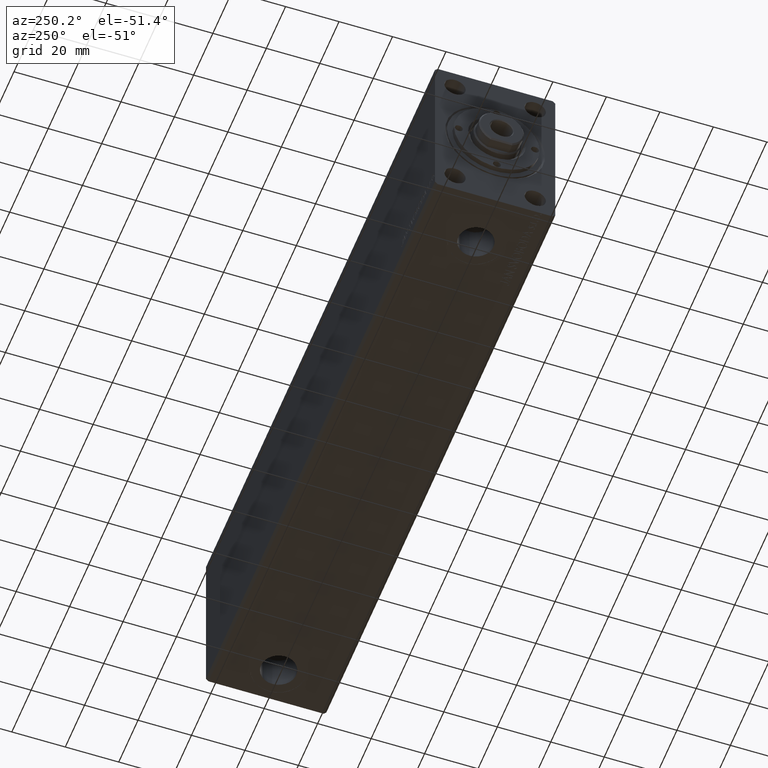
[diagram: clean part render]
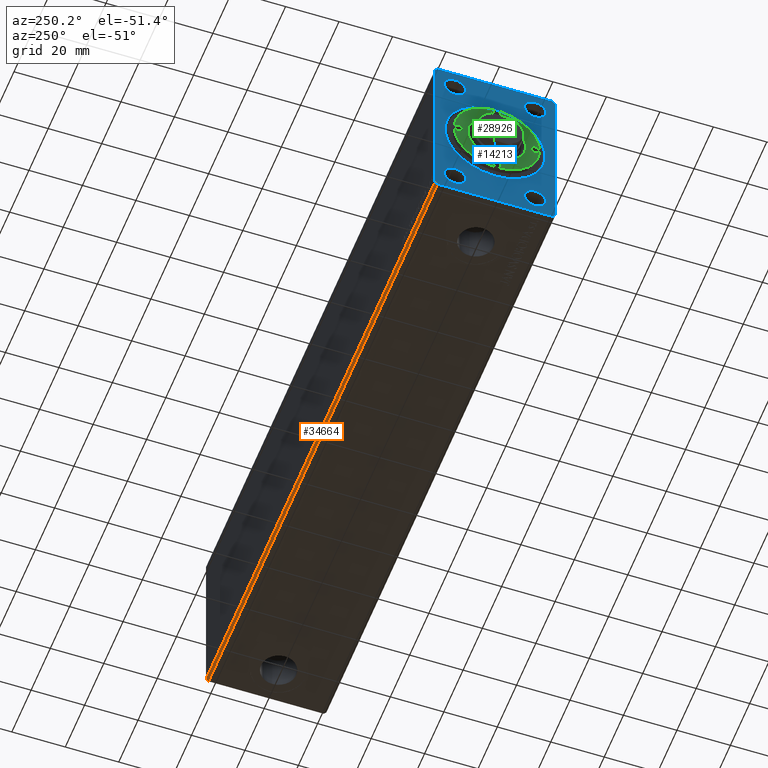
[diagram: same view with three faces highlighted in distinct colors, each labeled with its STEP entity id]
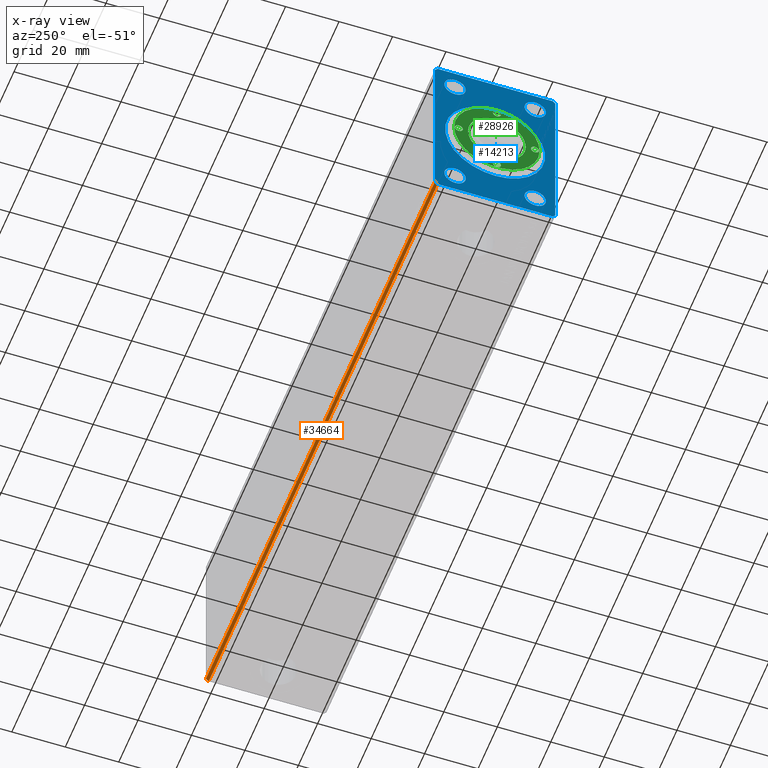
[diagram: x-ray of the same camera — body ghosted, the three highlighted faces saturated]
A machine part, auxiliary view with three faces highlighted in distinct colors.
The next image is the same camera in x-ray (body ghosted, the three faces saturated) — at least one of them is partly hidden behind the body in this view.
Their STEP definitions:

[orange] entity #34664 — the highlighted planar face has unit normal (0, -0.7071, 0.7071).
#100 = LINE ( 'NONE', #13701, #4263 ) ;
#3782 = CARTESIAN_POINT ( 'NONE',  ( 238.0000000000000000, 21.49999999999999645, -32.50000000000000000 ) ) ;
#4263 = VECTOR ( 'NONE', #25835, 1000.000000000000000 ) ;
#4691 = FACE_OUTER_BOUND ( 'NONE', #15745, .T. ) ;
#5311 = DIRECTION ( 'NONE',  ( 0.000000000000000000, 0.7071067811865474617, 0.7071067811865474617 ) ) ;
#5585 = DIRECTION ( 'NONE',  ( 0.000000000000000000, -0.7071067811865474617, -0.7071067811865474617 ) ) ;
#6337 = VERTEX_POINT ( 'NONE', #12791 ) ;
#7333 = VECTOR ( 'NONE', #5311, 1000.000000000000114 ) ;
#8029 = CARTESIAN_POINT ( 'NONE',  ( 0.000000000000000000, 21.49999999999999645, -32.50000000000000000 ) ) ;
#12001 = CARTESIAN_POINT ( 'NONE',  ( 238.0000000000000000, 21.49999999999999645, -32.50000000000000000 ) ) ;
#12791 = CARTESIAN_POINT ( 'NONE',  ( 0.000000000000000000, 22.49999999999999645, -31.50000000000000000 ) ) ;
#13385 = DIRECTION ( 'NONE',  ( -1.000000000000000000, -0.000000000000000000, -0.000000000000000000 ) ) ;
#13600 = LINE ( 'NONE', #3782, #38884 ) ;
#13701 = CARTESIAN_POINT ( 'NONE',  ( 238.0000000000000000, 22.49999999999999645, -31.50000000000000000 ) ) ;
#13845 = ORIENTED_EDGE ( 'NONE', *, *, #28236, .F. ) ;
#15242 = DIRECTION ( 'NONE',  ( 0.000000000000000000, 0.7071067811865474617, 0.7071067811865474617 ) ) ;
#15745 = EDGE_LOOP ( 'NONE', ( #36679, #13845, #30027, #35883 ) ) ;
#16009 = LINE ( 'NONE', #19358, #7333 ) ;
#18106 = EDGE_CURVE ( 'NONE', #32587, #42591, #13600, .T. ) ;
#19358 = CARTESIAN_POINT ( 'NONE',  ( 0.000000000000000000, 21.49999999999999645, -32.50000000000000000 ) ) ;
#21778 = CARTESIAN_POINT ( 'NONE',  ( 238.0000000000000000, 22.49999999999999645, -31.50000000000000000 ) ) ;
#21938 = CARTESIAN_POINT ( 'NONE',  ( 238.0000000000000000, 21.49999999999999645, -32.50000000000000000 ) ) ;
#22323 = PLANE ( 'NONE',  #42181 ) ;
#22545 = DIRECTION ( 'NONE',  ( 0.000000000000000000, -0.7071067811865475727, 0.7071067811865475727 ) ) ;
#25835 = DIRECTION ( 'NONE',  ( -1.000000000000000000, -0.000000000000000000, -0.000000000000000000 ) ) ;
#28236 = EDGE_CURVE ( 'NONE', #36871, #6337, #100, .T. ) ;
#30027 = ORIENTED_EDGE ( 'NONE', *, *, #35140, .F. ) ;
#31890 = CARTESIAN_POINT ( 'NONE',  ( 238.0000000000000000, 21.49999999999999645, -32.50000000000000000 ) ) ;
#32587 = VERTEX_POINT ( 'NONE', #12001 ) ;
#34664 = ADVANCED_FACE ( 'NONE', ( #4691 ), #22323, .F. ) ;
#35140 = EDGE_CURVE ( 'NONE', #32587, #36871, #42665, .T. ) ;
#35883 = ORIENTED_EDGE ( 'NONE', *, *, #18106, .T. ) ;
#36679 = ORIENTED_EDGE ( 'NONE', *, *, #38917, .T. ) ;
#36871 = VERTEX_POINT ( 'NONE', #21778 ) ;
#38884 = VECTOR ( 'NONE', #13385, 1000.000000000000000 ) ;
#38917 = EDGE_CURVE ( 'NONE', #42591, #6337, #16009, .T. ) ;
#40754 = VECTOR ( 'NONE', #15242, 1000.000000000000114 ) ;
#42181 = AXIS2_PLACEMENT_3D ( 'NONE', #31890, #22545, #5585 ) ;
#42591 = VERTEX_POINT ( 'NONE', #8029 ) ;
#42665 = LINE ( 'NONE', #21938, #40754 ) ;

[blue] entity #14213 — the highlighted planar face has unit normal (1, 0, 0).
#212 = DIRECTION ( 'NONE',  ( 1.000000000000000000, 0.000000000000000000, 0.000000000000000000 ) ) ;
#346 = CARTESIAN_POINT ( 'NONE',  ( 3.061616997868395467E-16, 15.00000000000000355, 25.00000000000000000 ) ) ;
#433 = CARTESIAN_POINT ( 'NONE',  ( 0.000000000000000000, 0.000000000000000000, 0.000000000000000000 ) ) ;
#451 = ORIENTED_EDGE ( 'NONE', *, *, #17125, .F. ) ;
#483 = CARTESIAN_POINT ( 'NONE',  ( 3.061616997868395467E-16, -14.99999999999999645, -28.99999999999999645 ) ) ;
#653 = FACE_BOUND ( 'NONE', #34785, .T. ) ;
#716 = CARTESIAN_POINT ( 'NONE',  ( 0.000000000000000000, 22.49999999999999645, 31.50000000000000000 ) ) ;
#1234 = CARTESIAN_POINT ( 'NONE',  ( 3.061616997868395467E-16, -14.99999999999999645, 24.99999999999999645 ) ) ;
#1417 = ORIENTED_EDGE ( 'NONE', *, *, #30829, .F. ) ;
#2109 = VECTOR ( 'NONE', #28893, 1000.000000000000114 ) ;
#2507 = ORIENTED_EDGE ( 'NONE', *, *, #7502, .F. ) ;
#2725 = VERTEX_POINT ( 'NONE', #25461 ) ;
#2995 = DIRECTION ( 'NONE',  ( -1.000000000000000000, -0.000000000000000000, -0.000000000000000000 ) ) ;
#3000 = ORIENTED_EDGE ( 'NONE', *, *, #38853, .F. ) ;
#3017 = CARTESIAN_POINT ( 'NONE',  ( 0.000000000000000000, -21.50000000000001421, 32.50000000000000000 ) ) ;
#3322 = CARTESIAN_POINT ( 'NONE',  ( 0.000000000000000000, -21.50000000000001776, -32.50000000000000711 ) ) ;
#3772 = AXIS2_PLACEMENT_3D ( 'NONE', #11541, #34532, #28279 ) ;
#3869 = VECTOR ( 'NONE', #41213, 1000.000000000000000 ) ;
#4274 = VERTEX_POINT ( 'NONE', #39354 ) ;
#4508 = DIRECTION ( 'NONE',  ( 0.000000000000000000, 0.000000000000000000, 1.000000000000000000 ) ) ;
#5311 = DIRECTION ( 'NONE',  ( 0.000000000000000000, 0.7071067811865474617, 0.7071067811865474617 ) ) ;
#5527 = VERTEX_POINT ( 'NONE', #25845 ) ;
#6337 = VERTEX_POINT ( 'NONE', #12791 ) ;
#6539 = CARTESIAN_POINT ( 'NONE',  ( 3.061616997868395467E-16, 15.00000000000000355, 25.00000000000000000 ) ) ;
#6563 = AXIS2_PLACEMENT_3D ( 'NONE', #6539, #40441, #19270 ) ;
#6703 = VECTOR ( 'NONE', #8140, 1000.000000000000000 ) ;
#6793 = ORIENTED_EDGE ( 'NONE', *, *, #21707, .F. ) ;
#7333 = VECTOR ( 'NONE', #5311, 1000.000000000000114 ) ;
#7502 = EDGE_CURVE ( 'NONE', #14343, #42591, #14004, .T. ) ;
#7907 = ORIENTED_EDGE ( 'NONE', *, *, #33128, .F. ) ;
#8029 = CARTESIAN_POINT ( 'NONE',  ( 0.000000000000000000, 21.49999999999999645, -32.50000000000000000 ) ) ;
#8056 = CARTESIAN_POINT ( 'NONE',  ( 0.000000000000000000, 22.49999999999999645, 31.50000000000000000 ) ) ;
#8140 = DIRECTION ( 'NONE',  ( 0.000000000000000000, -1.000000000000000000, 0.000000000000000000 ) ) ;
#8189 = CIRCLE ( 'NONE', #35250, 4.000000000000000000 ) ;
#8280 = LINE ( 'NONE', #8056, #12717 ) ;
#8699 = EDGE_LOOP ( 'NONE', ( #22644, #26562 ) ) ;
#10548 = VERTEX_POINT ( 'NONE', #12625 ) ;
#10555 = EDGE_CURVE ( 'NONE', #6337, #19492, #22462, .T. ) ;
#10566 = CARTESIAN_POINT ( 'NONE',  ( 0.000000000000000000, 0.000000000000000000, 0.000000000000000000 ) ) ;
#10967 = AXIS2_PLACEMENT_3D ( 'NONE', #346, #16877, #27785 ) ;
#11104 = EDGE_CURVE ( 'NONE', #23739, #2725, #8189, .T. ) ;
#11541 = CARTESIAN_POINT ( 'NONE',  ( 0.000000000000000000, 0.000000000000000000, 0.000000000000000000 ) ) ;
#12108 = CARTESIAN_POINT ( 'NONE',  ( 3.061616997868395467E-16, -14.99999999999999645, -20.99999999999999645 ) ) ;
#12625 = CARTESIAN_POINT ( 'NONE',  ( 3.061616997868395467E-16, 15.00000000000000355, -20.99999999999999289 ) ) ;
#12688 = ORIENTED_EDGE ( 'NONE', *, *, #17194, .F. ) ;
#12717 = VECTOR ( 'NONE', #32589, 1000.000000000000114 ) ;
#12791 = CARTESIAN_POINT ( 'NONE',  ( 0.000000000000000000, 22.49999999999999645, -31.50000000000000000 ) ) ;
#13124 = EDGE_CURVE ( 'NONE', #28693, #39662, #35185, .T. ) ;
#14004 = LINE ( 'NONE', #3322, #3869 ) ;
#14209 = ORIENTED_EDGE ( 'NONE', *, *, #29894, .T. ) ;
#14213 = ADVANCED_FACE ( 'NONE', ( #41030, #38333, #653, #24522, #20964, #21398 ), #30989, .F. ) ;
#14240 = CARTESIAN_POINT ( 'NONE',  ( 3.061616997868395467E-16, 15.00000000000000355, -24.99999999999999289 ) ) ;
#14343 = VERTEX_POINT ( 'NONE', #20742 ) ;
#14757 = VERTEX_POINT ( 'NONE', #39833 ) ;
#14789 = CIRCLE ( 'NONE', #27619, 4.000000000000000000 ) ;
#15157 = VERTEX_POINT ( 'NONE', #24579 ) ;
#15234 = VERTEX_POINT ( 'NONE', #18993 ) ;
#15979 = DIRECTION ( 'NONE',  ( 0.000000000000000000, 0.000000000000000000, 1.000000000000000000 ) ) ;
#16004 = LINE ( 'NONE', #29614, #28558 ) ;
#16009 = LINE ( 'NONE', #19358, #7333 ) ;
#16877 = DIRECTION ( 'NONE',  ( -1.000000000000000000, -0.000000000000000000, -0.000000000000000000 ) ) ;
#16983 = ORIENTED_EDGE ( 'NONE', *, *, #11104, .F. ) ;
#17125 = EDGE_CURVE ( 'NONE', #14757, #15157, #41616, .T. ) ;
#17194 = EDGE_CURVE ( 'NONE', #2725, #23739, #35318, .T. ) ;
#17291 = VERTEX_POINT ( 'NONE', #3017 ) ;
#17880 = CARTESIAN_POINT ( 'NONE',  ( 3.061616997868395467E-16, -14.99999999999999645, -24.99999999999999645 ) ) ;
#18198 = CARTESIAN_POINT ( 'NONE',  ( 0.000000000000000000, -22.50000000000001776, 31.50000000000000000 ) ) ;
#18225 = VECTOR ( 'NONE', #31565, 1000.000000000000000 ) ;
#18860 = LINE ( 'NONE', #38924, #2109 ) ;
#18993 = CARTESIAN_POINT ( 'NONE',  ( 0.000000000000000000, 21.49999999999999645, 32.50000000000000000 ) ) ;
#19014 = EDGE_CURVE ( 'NONE', #10548, #4274, #14789, .T. ) ;
#19270 = DIRECTION ( 'NONE',  ( 0.000000000000000000, 0.000000000000000000, 1.000000000000000000 ) ) ;
#19358 = CARTESIAN_POINT ( 'NONE',  ( 0.000000000000000000, 21.49999999999999645, -32.50000000000000000 ) ) ;
#19492 = VERTEX_POINT ( 'NONE', #716 ) ;
#20001 = ORIENTED_EDGE ( 'NONE', *, *, #38917, .F. ) ;
#20192 = CIRCLE ( 'NONE', #40103, 4.000000000000000000 ) ;
#20742 = CARTESIAN_POINT ( 'NONE',  ( 0.000000000000000000, -21.50000000000001776, -32.50000000000000711 ) ) ;
#20964 = FACE_BOUND ( 'NONE', #23961, .T. ) ;
#21057 = DIRECTION ( 'NONE',  ( 0.000000000000000000, 0.000000000000000000, -1.000000000000000000 ) ) ;
#21099 = AXIS2_PLACEMENT_3D ( 'NONE', #1234, #42051, #35799 ) ;
#21394 = VERTEX_POINT ( 'NONE', #29846 ) ;
#21398 = FACE_OUTER_BOUND ( 'NONE', #40053, .T. ) ;
#21707 = EDGE_CURVE ( 'NONE', #19492, #15234, #8280, .T. ) ;
#21796 = CARTESIAN_POINT ( 'NONE',  ( 3.061616997868395467E-16, -14.99999999999999645, 20.99999999999999645 ) ) ;
#21826 = AXIS2_PLACEMENT_3D ( 'NONE', #433, #212, #24951 ) ;
#21976 = LINE ( 'NONE', #38470, #6703 ) ;
#22013 = CARTESIAN_POINT ( 'NONE',  ( 0.000000000000000000, 22.49999999999999645, -31.50000000000000000 ) ) ;
#22462 = LINE ( 'NONE', #22013, #24565 ) ;
#22490 = EDGE_LOOP ( 'NONE', ( #12688, #16983 ) ) ;
#22644 = ORIENTED_EDGE ( 'NONE', *, *, #24107, .F. ) ;
#22756 = EDGE_LOOP ( 'NONE', ( #38351, #7907 ) ) ;
#23018 = CIRCLE ( 'NONE', #3772, 18.69999999999999574 ) ;
#23109 = CARTESIAN_POINT ( 'NONE',  ( 0.000000000000000000, 0.000000000000000000, 18.69999999999999574 ) ) ;
#23739 = VERTEX_POINT ( 'NONE', #21796 ) ;
#23940 = CARTESIAN_POINT ( 'NONE',  ( 3.061616997868395467E-16, -14.99999999999999645, 24.99999999999999645 ) ) ;
#23961 = EDGE_LOOP ( 'NONE', ( #14209, #30998 ) ) ;
#24107 = EDGE_CURVE ( 'NONE', #39662, #28693, #37710, .T. ) ;
#24522 = FACE_BOUND ( 'NONE', #22490, .T. ) ;
#24565 = VECTOR ( 'NONE', #15979, 1000.000000000000000 ) ;
#24579 = CARTESIAN_POINT ( 'NONE',  ( 0.000000000000000000, -22.50000000000001421, -31.50000000000000711 ) ) ;
#24718 = ORIENTED_EDGE ( 'NONE', *, *, #19014, .F. ) ;
#24936 = DIRECTION ( 'NONE',  ( -1.000000000000000000, -0.000000000000000000, -0.000000000000000000 ) ) ;
#24951 = DIRECTION ( 'NONE',  ( 0.000000000000000000, 0.000000000000000000, -1.000000000000000000 ) ) ;
#25050 = CIRCLE ( 'NONE', #6563, 4.000000000000000000 ) ;
#25461 = CARTESIAN_POINT ( 'NONE',  ( 3.061616997868395467E-16, -14.99999999999999645, 28.99999999999999645 ) ) ;
#25711 = ORIENTED_EDGE ( 'NONE', *, *, #10555, .F. ) ;
#25739 = VERTEX_POINT ( 'NONE', #38095 ) ;
#25845 = CARTESIAN_POINT ( 'NONE',  ( 0.000000000000000000, 2.290089514405549716E-15, -18.69999999999999574 ) ) ;
#25977 = DIRECTION ( 'NONE',  ( 0.000000000000000000, 0.000000000000000000, 1.000000000000000000 ) ) ;
#26288 = EDGE_CURVE ( 'NONE', #15157, #14343, #18860, .T. ) ;
#26533 = ORIENTED_EDGE ( 'NONE', *, *, #26288, .F. ) ;
#26562 = ORIENTED_EDGE ( 'NONE', *, *, #13124, .F. ) ;
#27105 = CIRCLE ( 'NONE', #29232, 18.69999999999999574 ) ;
#27619 = AXIS2_PLACEMENT_3D ( 'NONE', #34991, #28304, #32079 ) ;
#27785 = DIRECTION ( 'NONE',  ( 0.000000000000000000, 0.000000000000000000, 1.000000000000000000 ) ) ;
#28209 = VERTEX_POINT ( 'NONE', #23109 ) ;
#28279 = DIRECTION ( 'NONE',  ( 0.000000000000000000, 0.000000000000000000, -1.000000000000000000 ) ) ;
#28304 = DIRECTION ( 'NONE',  ( -1.000000000000000000, -0.000000000000000000, -0.000000000000000000 ) ) ;
#28558 = VECTOR ( 'NONE', #43221, 1000.000000000000114 ) ;
#28693 = VERTEX_POINT ( 'NONE', #483 ) ;
#28893 = DIRECTION ( 'NONE',  ( 0.000000000000000000, 0.7071067811865451302, -0.7071067811865500152 ) ) ;
#29232 = AXIS2_PLACEMENT_3D ( 'NONE', #10566, #38423, #21057 ) ;
#29614 = CARTESIAN_POINT ( 'NONE',  ( 0.000000000000000000, -21.50000000000001421, 32.50000000000000000 ) ) ;
#29846 = CARTESIAN_POINT ( 'NONE',  ( 3.061616997868395467E-16, 15.00000000000000355, 29.00000000000000000 ) ) ;
#29894 = EDGE_CURVE ( 'NONE', #28209, #5527, #27105, .T. ) ;
#30829 = EDGE_CURVE ( 'NONE', #17291, #14757, #16004, .T. ) ;
#30989 = PLANE ( 'NONE',  #21826 ) ;
#30998 = ORIENTED_EDGE ( 'NONE', *, *, #38090, .T. ) ;
#31463 = DIRECTION ( 'NONE',  ( -1.000000000000000000, -0.000000000000000000, -0.000000000000000000 ) ) ;
#31565 = DIRECTION ( 'NONE',  ( 0.000000000000000000, 5.507058653894625853E-17, -1.000000000000000000 ) ) ;
#32079 = DIRECTION ( 'NONE',  ( 0.000000000000000000, 0.000000000000000000, 1.000000000000000000 ) ) ;
#32589 = DIRECTION ( 'NONE',  ( 0.000000000000000000, -0.7071067811865474617, 0.7071067811865474617 ) ) ;
#33128 = EDGE_CURVE ( 'NONE', #25739, #21394, #25050, .T. ) ;
#33536 = CARTESIAN_POINT ( 'NONE',  ( 3.061616997868395467E-16, -14.99999999999999645, -24.99999999999999645 ) ) ;
#34532 = DIRECTION ( 'NONE',  ( 1.000000000000000000, 0.000000000000000000, 0.000000000000000000 ) ) ;
#34785 = EDGE_LOOP ( 'NONE', ( #24718, #3000 ) ) ;
#34991 = CARTESIAN_POINT ( 'NONE',  ( 3.061616997868395467E-16, 15.00000000000000355, -24.99999999999999289 ) ) ;
#35182 = CIRCLE ( 'NONE', #10967, 4.000000000000000000 ) ;
#35185 = CIRCLE ( 'NONE', #38055, 4.000000000000000000 ) ;
#35250 = AXIS2_PLACEMENT_3D ( 'NONE', #23940, #37528, #4508 ) ;
#35318 = CIRCLE ( 'NONE', #21099, 4.000000000000000000 ) ;
#35799 = DIRECTION ( 'NONE',  ( 0.000000000000000000, 0.000000000000000000, 1.000000000000000000 ) ) ;
#37143 = EDGE_CURVE ( 'NONE', #21394, #25739, #35182, .T. ) ;
#37244 = EDGE_CURVE ( 'NONE', #15234, #17291, #21976, .T. ) ;
#37528 = DIRECTION ( 'NONE',  ( -1.000000000000000000, -0.000000000000000000, -0.000000000000000000 ) ) ;
#37710 = CIRCLE ( 'NONE', #41979, 4.000000000000000000 ) ;
#37721 = DIRECTION ( 'NONE',  ( 0.000000000000000000, 0.000000000000000000, 1.000000000000000000 ) ) ;
#38055 = AXIS2_PLACEMENT_3D ( 'NONE', #17880, #31463, #37721 ) ;
#38090 = EDGE_CURVE ( 'NONE', #5527, #28209, #23018, .T. ) ;
#38095 = CARTESIAN_POINT ( 'NONE',  ( 3.061616997868395467E-16, 15.00000000000000355, 21.00000000000000000 ) ) ;
#38333 = FACE_BOUND ( 'NONE', #8699, .T. ) ;
#38351 = ORIENTED_EDGE ( 'NONE', *, *, #37143, .F. ) ;
#38423 = DIRECTION ( 'NONE',  ( 1.000000000000000000, 0.000000000000000000, 0.000000000000000000 ) ) ;
#38470 = CARTESIAN_POINT ( 'NONE',  ( 0.000000000000000000, 21.49999999999999645, 32.50000000000000000 ) ) ;
#38540 = DIRECTION ( 'NONE',  ( 0.000000000000000000, 0.000000000000000000, 1.000000000000000000 ) ) ;
#38853 = EDGE_CURVE ( 'NONE', #4274, #10548, #20192, .T. ) ;
#38917 = EDGE_CURVE ( 'NONE', #42591, #6337, #16009, .T. ) ;
#38924 = CARTESIAN_POINT ( 'NONE',  ( 0.000000000000000000, -22.50000000000001421, -31.50000000000000711 ) ) ;
#39354 = CARTESIAN_POINT ( 'NONE',  ( 3.061616997868395467E-16, 15.00000000000000355, -28.99999999999999289 ) ) ;
#39662 = VERTEX_POINT ( 'NONE', #12108 ) ;
#39833 = CARTESIAN_POINT ( 'NONE',  ( 0.000000000000000000, -22.50000000000001776, 31.50000000000000000 ) ) ;
#40053 = EDGE_LOOP ( 'NONE', ( #6793, #25711, #20001, #2507, #26533, #451, #1417, #43825 ) ) ;
#40103 = AXIS2_PLACEMENT_3D ( 'NONE', #14240, #24936, #38540 ) ;
#40441 = DIRECTION ( 'NONE',  ( -1.000000000000000000, -0.000000000000000000, -0.000000000000000000 ) ) ;
#41030 = FACE_BOUND ( 'NONE', #22756, .T. ) ;
#41213 = DIRECTION ( 'NONE',  ( 0.000000000000000000, 1.000000000000000000, 1.613696256722610912E-16 ) ) ;
#41616 = LINE ( 'NONE', #18198, #18225 ) ;
#41979 = AXIS2_PLACEMENT_3D ( 'NONE', #33536, #2995, #25977 ) ;
#42051 = DIRECTION ( 'NONE',  ( -1.000000000000000000, -0.000000000000000000, -0.000000000000000000 ) ) ;
#42591 = VERTEX_POINT ( 'NONE', #8029 ) ;
#43221 = DIRECTION ( 'NONE',  ( 0.000000000000000000, -0.7071067811865474617, -0.7071067811865474617 ) ) ;
#43825 = ORIENTED_EDGE ( 'NONE', *, *, #37244, .F. ) ;

[green] entity #28926 — the highlighted planar face has unit normal (-1, 0, 0).
#431 = FACE_BOUND ( 'NONE', #40023, .T. ) ;
#899 = VERTEX_POINT ( 'NONE', #22918 ) ;
#949 = DIRECTION ( 'NONE',  ( 1.000000000000000000, 0.000000000000000000, 0.000000000000000000 ) ) ;
#1308 = CIRCLE ( 'NONE', #43359, 1.499999999999996225 ) ;
#1335 = ORIENTED_EDGE ( 'NONE', *, *, #21532, .F. ) ;
#1572 = CIRCLE ( 'NONE', #13704, 10.79999999999997584 ) ;
#1842 = EDGE_LOOP ( 'NONE', ( #11470, #15913 ) ) ;
#1988 = AXIS2_PLACEMENT_3D ( 'NONE', #42523, #38953, #11963 ) ;
#2080 = CARTESIAN_POINT ( 'NONE',  ( -16.00000000000000000, 0.000000000000000000, 6.999999999999999112 ) ) ;
#2279 = EDGE_CURVE ( 'NONE', #42251, #15476, #1572, .T. ) ;
#2599 = ORIENTED_EDGE ( 'NONE', *, *, #15535, .F. ) ;
#2672 = VERTEX_POINT ( 'NONE', #30836 ) ;
#2755 = DIRECTION ( 'NONE',  ( -0.000000000000000000, -0.000000000000000000, 1.000000000000000000 ) ) ;
#2846 = CARTESIAN_POINT ( 'NONE',  ( 0.000000000000000000, 14.25000000000000000, 6.999999999999999112 ) ) ;
#2869 = CARTESIAN_POINT ( 'NONE',  ( 0.000000000000000000, 0.000000000000000000, 6.999999999999999112 ) ) ;
#3510 = DIRECTION ( 'NONE',  ( 1.000000000000000000, 0.000000000000000000, 0.000000000000000000 ) ) ;
#3802 = CIRCLE ( 'NONE', #36598, 1.499999999999996891 ) ;
#3824 = ORIENTED_EDGE ( 'NONE', *, *, #19213, .T. ) ;
#4480 = AXIS2_PLACEMENT_3D ( 'NONE', #17306, #40944, #41600 ) ;
#4813 = AXIS2_PLACEMENT_3D ( 'NONE', #2869, #32750, #30070 ) ;
#4863 = CARTESIAN_POINT ( 'NONE',  ( -12.75000000000000355, 0.000000000000000000, 6.999999999999999112 ) ) ;
#5776 = VERTEX_POINT ( 'NONE', #8397 ) ;
#5919 = CIRCLE ( 'NONE', #8042, 1.499999999999996225 ) ;
#6260 = CIRCLE ( 'NONE', #1988, 16.00000000000000000 ) ;
#6361 = DIRECTION ( 'NONE',  ( -0.000000000000000000, -0.000000000000000000, 1.000000000000000000 ) ) ;
#7339 = ORIENTED_EDGE ( 'NONE', *, *, #2279, .T. ) ;
#7533 = ORIENTED_EDGE ( 'NONE', *, *, #20356, .T. ) ;
#7742 = CARTESIAN_POINT ( 'NONE',  ( 12.75000000000000355, 1.836970198721025004E-16, 6.999999999999999112 ) ) ;
#8042 = AXIS2_PLACEMENT_3D ( 'NONE', #35719, #16317, #9850 ) ;
#8397 = CARTESIAN_POINT ( 'NONE',  ( 15.74999999999999645, 0.000000000000000000, 6.999999999999999112 ) ) ;
#8491 = AXIS2_PLACEMENT_3D ( 'NONE', #17468, #31059, #41327 ) ;
#8874 = CIRCLE ( 'NONE', #21666, 1.499999999999996891 ) ;
#9516 = VERTEX_POINT ( 'NONE', #23105 ) ;
#9850 = DIRECTION ( 'NONE',  ( 1.000000000000000000, 0.000000000000000000, 0.000000000000000000 ) ) ;
#9978 = DIRECTION ( 'NONE',  ( 1.000000000000000000, 0.000000000000000000, 0.000000000000000000 ) ) ;
#10525 = CIRCLE ( 'NONE', #4813, 16.00000000000000000 ) ;
#10691 = FACE_BOUND ( 'NONE', #36561, .T. ) ;
#11313 = VERTEX_POINT ( 'NONE', #7742 ) ;
#11470 = ORIENTED_EDGE ( 'NONE', *, *, #26042, .F. ) ;
#11963 = DIRECTION ( 'NONE',  ( 1.000000000000000000, 0.000000000000000000, 0.000000000000000000 ) ) ;
#13061 = CARTESIAN_POINT ( 'NONE',  ( 0.000000000000000000, -14.25000000000000000, 6.999999999999999112 ) ) ;
#13309 = EDGE_CURVE ( 'NONE', #899, #28958, #8874, .T. ) ;
#13383 = DIRECTION ( 'NONE',  ( -0.000000000000000000, -0.000000000000000000, 1.000000000000000000 ) ) ;
#13704 = AXIS2_PLACEMENT_3D ( 'NONE', #14352, #27964, #33989 ) ;
#14019 = AXIS2_PLACEMENT_3D ( 'NONE', #17688, #14334, #949 ) ;
#14254 = DIRECTION ( 'NONE',  ( 0.000000000000000000, 0.000000000000000000, 1.000000000000000000 ) ) ;
#14334 = DIRECTION ( 'NONE',  ( -0.000000000000000000, -0.000000000000000000, 1.000000000000000000 ) ) ;
#14352 = CARTESIAN_POINT ( 'NONE',  ( 0.000000000000000000, 0.000000000000000000, 6.999999999999999112 ) ) ;
#15439 = VERTEX_POINT ( 'NONE', #32704 ) ;
#15476 = VERTEX_POINT ( 'NONE', #25568 ) ;
#15535 = EDGE_CURVE ( 'NONE', #2672, #35740, #30397, .T. ) ;
#15913 = ORIENTED_EDGE ( 'NONE', *, *, #36023, .F. ) ;
#16317 = DIRECTION ( 'NONE',  ( -0.000000000000000000, -0.000000000000000000, 1.000000000000000000 ) ) ;
#16360 = CARTESIAN_POINT ( 'NONE',  ( 14.25000000000000000, 0.000000000000000000, 6.999999999999999112 ) ) ;
#16899 = CARTESIAN_POINT ( 'NONE',  ( 0.000000000000000000, 14.25000000000000000, 6.999999999999999112 ) ) ;
#17175 = DIRECTION ( 'NONE',  ( 1.000000000000000000, 0.000000000000000000, -0.000000000000000000 ) ) ;
#17287 = VERTEX_POINT ( 'NONE', #32898 ) ;
#17306 = CARTESIAN_POINT ( 'NONE',  ( 0.000000000000000000, 0.000000000000000000, 6.999999999999999112 ) ) ;
#17391 = CARTESIAN_POINT ( 'NONE',  ( 1.499999999999996891, -14.25000000000000000, 6.999999999999999112 ) ) ;
#17468 = CARTESIAN_POINT ( 'NONE',  ( -14.25000000000000000, 0.000000000000000000, 6.999999999999999112 ) ) ;
#17688 = CARTESIAN_POINT ( 'NONE',  ( -14.25000000000000000, 0.000000000000000000, 6.999999999999999112 ) ) ;
#17726 = ORIENTED_EDGE ( 'NONE', *, *, #40759, .F. ) ;
#17762 = CIRCLE ( 'NONE', #8491, 1.499999999999996225 ) ;
#17826 = FACE_BOUND ( 'NONE', #1842, .T. ) ;
#18353 = EDGE_CURVE ( 'NONE', #28958, #899, #20501, .T. ) ;
#19213 = EDGE_CURVE ( 'NONE', #17287, #39695, #10525, .T. ) ;
#20356 = EDGE_CURVE ( 'NONE', #39695, #17287, #6260, .T. ) ;
#20449 = CARTESIAN_POINT ( 'NONE',  ( 10.79999999999997584, 0.000000000000000000, 6.999999999999999112 ) ) ;
#20501 = CIRCLE ( 'NONE', #30461, 1.499999999999996891 ) ;
#20962 = FACE_OUTER_BOUND ( 'NONE', #40796, .T. ) ;
#21179 = FACE_BOUND ( 'NONE', #23095, .T. ) ;
#21532 = EDGE_CURVE ( 'NONE', #11313, #5776, #1308, .T. ) ;
#21581 = CIRCLE ( 'NONE', #4480, 10.79999999999997584 ) ;
#21666 = AXIS2_PLACEMENT_3D ( 'NONE', #37033, #13383, #26996 ) ;
#22810 = CIRCLE ( 'NONE', #38447, 1.499999999999996891 ) ;
#22918 = CARTESIAN_POINT ( 'NONE',  ( -1.499999999999996891, -14.25000000000000000, 6.999999999999999112 ) ) ;
#23095 = EDGE_LOOP ( 'NONE', ( #17726, #1335 ) ) ;
#23105 = CARTESIAN_POINT ( 'NONE',  ( 1.499999999999996891, 14.25000000000000000, 6.999999999999999112 ) ) ;
#24244 = EDGE_CURVE ( 'NONE', #35740, #2672, #17762, .T. ) ;
#25568 = CARTESIAN_POINT ( 'NONE',  ( -10.79999999999997584, 1.322618543079138535E-15, 6.999999999999999112 ) ) ;
#26042 = EDGE_CURVE ( 'NONE', #9516, #15439, #22810, .T. ) ;
#26426 = ORIENTED_EDGE ( 'NONE', *, *, #13309, .F. ) ;
#26996 = DIRECTION ( 'NONE',  ( 1.000000000000000000, 0.000000000000000000, 0.000000000000000000 ) ) ;
#27964 = DIRECTION ( 'NONE',  ( -0.000000000000000000, -0.000000000000000000, -1.000000000000000000 ) ) ;
#28926 = ADVANCED_FACE ( 'NONE', ( #431, #17826, #21179, #10691, #34335, #20962 ), #31198, .T. ) ;
#28958 = VERTEX_POINT ( 'NONE', #17391 ) ;
#29813 = ORIENTED_EDGE ( 'NONE', *, *, #24244, .F. ) ;
#30070 = DIRECTION ( 'NONE',  ( 1.000000000000000000, 0.000000000000000000, 0.000000000000000000 ) ) ;
#30397 = CIRCLE ( 'NONE', #14019, 1.499999999999996225 ) ;
#30461 = AXIS2_PLACEMENT_3D ( 'NONE', #13061, #6361, #43627 ) ;
#30836 = CARTESIAN_POINT ( 'NONE',  ( -15.74999999999999645, 1.836970198721025004E-16, 6.999999999999999112 ) ) ;
#31059 = DIRECTION ( 'NONE',  ( -0.000000000000000000, -0.000000000000000000, 1.000000000000000000 ) ) ;
#31198 = PLANE ( 'NONE',  #43512 ) ;
#32704 = CARTESIAN_POINT ( 'NONE',  ( -1.499999999999996891, 14.25000000000000000, 6.999999999999999112 ) ) ;
#32750 = DIRECTION ( 'NONE',  ( 0.000000000000000000, 0.000000000000000000, 1.000000000000000000 ) ) ;
#32898 = CARTESIAN_POINT ( 'NONE',  ( 16.00000000000000000, 1.959434878635765131E-15, 6.999999999999999112 ) ) ;
#33989 = DIRECTION ( 'NONE',  ( 1.000000000000000000, 0.000000000000000000, 0.000000000000000000 ) ) ;
#34054 = DIRECTION ( 'NONE',  ( -0.000000000000000000, -0.000000000000000000, 1.000000000000000000 ) ) ;
#34335 = FACE_BOUND ( 'NONE', #37467, .T. ) ;
#34773 = CARTESIAN_POINT ( 'NONE',  ( 0.000000000000000000, 0.000000000000000000, 6.999999999999999112 ) ) ;
#35719 = CARTESIAN_POINT ( 'NONE',  ( 14.25000000000000000, 0.000000000000000000, 6.999999999999999112 ) ) ;
#35740 = VERTEX_POINT ( 'NONE', #4863 ) ;
#36023 = EDGE_CURVE ( 'NONE', #15439, #9516, #3802, .T. ) ;
#36561 = EDGE_LOOP ( 'NONE', ( #41243, #26426 ) ) ;
#36598 = AXIS2_PLACEMENT_3D ( 'NONE', #16899, #34054, #3510 ) ;
#36740 = DIRECTION ( 'NONE',  ( -0.000000000000000000, -0.000000000000000000, 1.000000000000000000 ) ) ;
#37033 = CARTESIAN_POINT ( 'NONE',  ( 0.000000000000000000, -14.25000000000000000, 6.999999999999999112 ) ) ;
#37467 = EDGE_LOOP ( 'NONE', ( #7339, #43044 ) ) ;
#38447 = AXIS2_PLACEMENT_3D ( 'NONE', #2846, #36740, #9978 ) ;
#38953 = DIRECTION ( 'NONE',  ( 0.000000000000000000, 0.000000000000000000, 1.000000000000000000 ) ) ;
#39695 = VERTEX_POINT ( 'NONE', #2080 ) ;
#40023 = EDGE_LOOP ( 'NONE', ( #29813, #2599 ) ) ;
#40440 = DIRECTION ( 'NONE',  ( 1.000000000000000000, 0.000000000000000000, 0.000000000000000000 ) ) ;
#40759 = EDGE_CURVE ( 'NONE', #5776, #11313, #5919, .T. ) ;
#40796 = EDGE_LOOP ( 'NONE', ( #7533, #3824 ) ) ;
#40944 = DIRECTION ( 'NONE',  ( -0.000000000000000000, -0.000000000000000000, -1.000000000000000000 ) ) ;
#41243 = ORIENTED_EDGE ( 'NONE', *, *, #18353, .F. ) ;
#41327 = DIRECTION ( 'NONE',  ( 1.000000000000000000, 0.000000000000000000, 0.000000000000000000 ) ) ;
#41390 = EDGE_CURVE ( 'NONE', #15476, #42251, #21581, .T. ) ;
#41600 = DIRECTION ( 'NONE',  ( 1.000000000000000000, 0.000000000000000000, 0.000000000000000000 ) ) ;
#42251 = VERTEX_POINT ( 'NONE', #20449 ) ;
#42523 = CARTESIAN_POINT ( 'NONE',  ( 0.000000000000000000, 0.000000000000000000, 6.999999999999999112 ) ) ;
#43044 = ORIENTED_EDGE ( 'NONE', *, *, #41390, .T. ) ;
#43359 = AXIS2_PLACEMENT_3D ( 'NONE', #16360, #2755, #40440 ) ;
#43512 = AXIS2_PLACEMENT_3D ( 'NONE', #34773, #14254, #17175 ) ;
#43627 = DIRECTION ( 'NONE',  ( 1.000000000000000000, 0.000000000000000000, 0.000000000000000000 ) ) ;